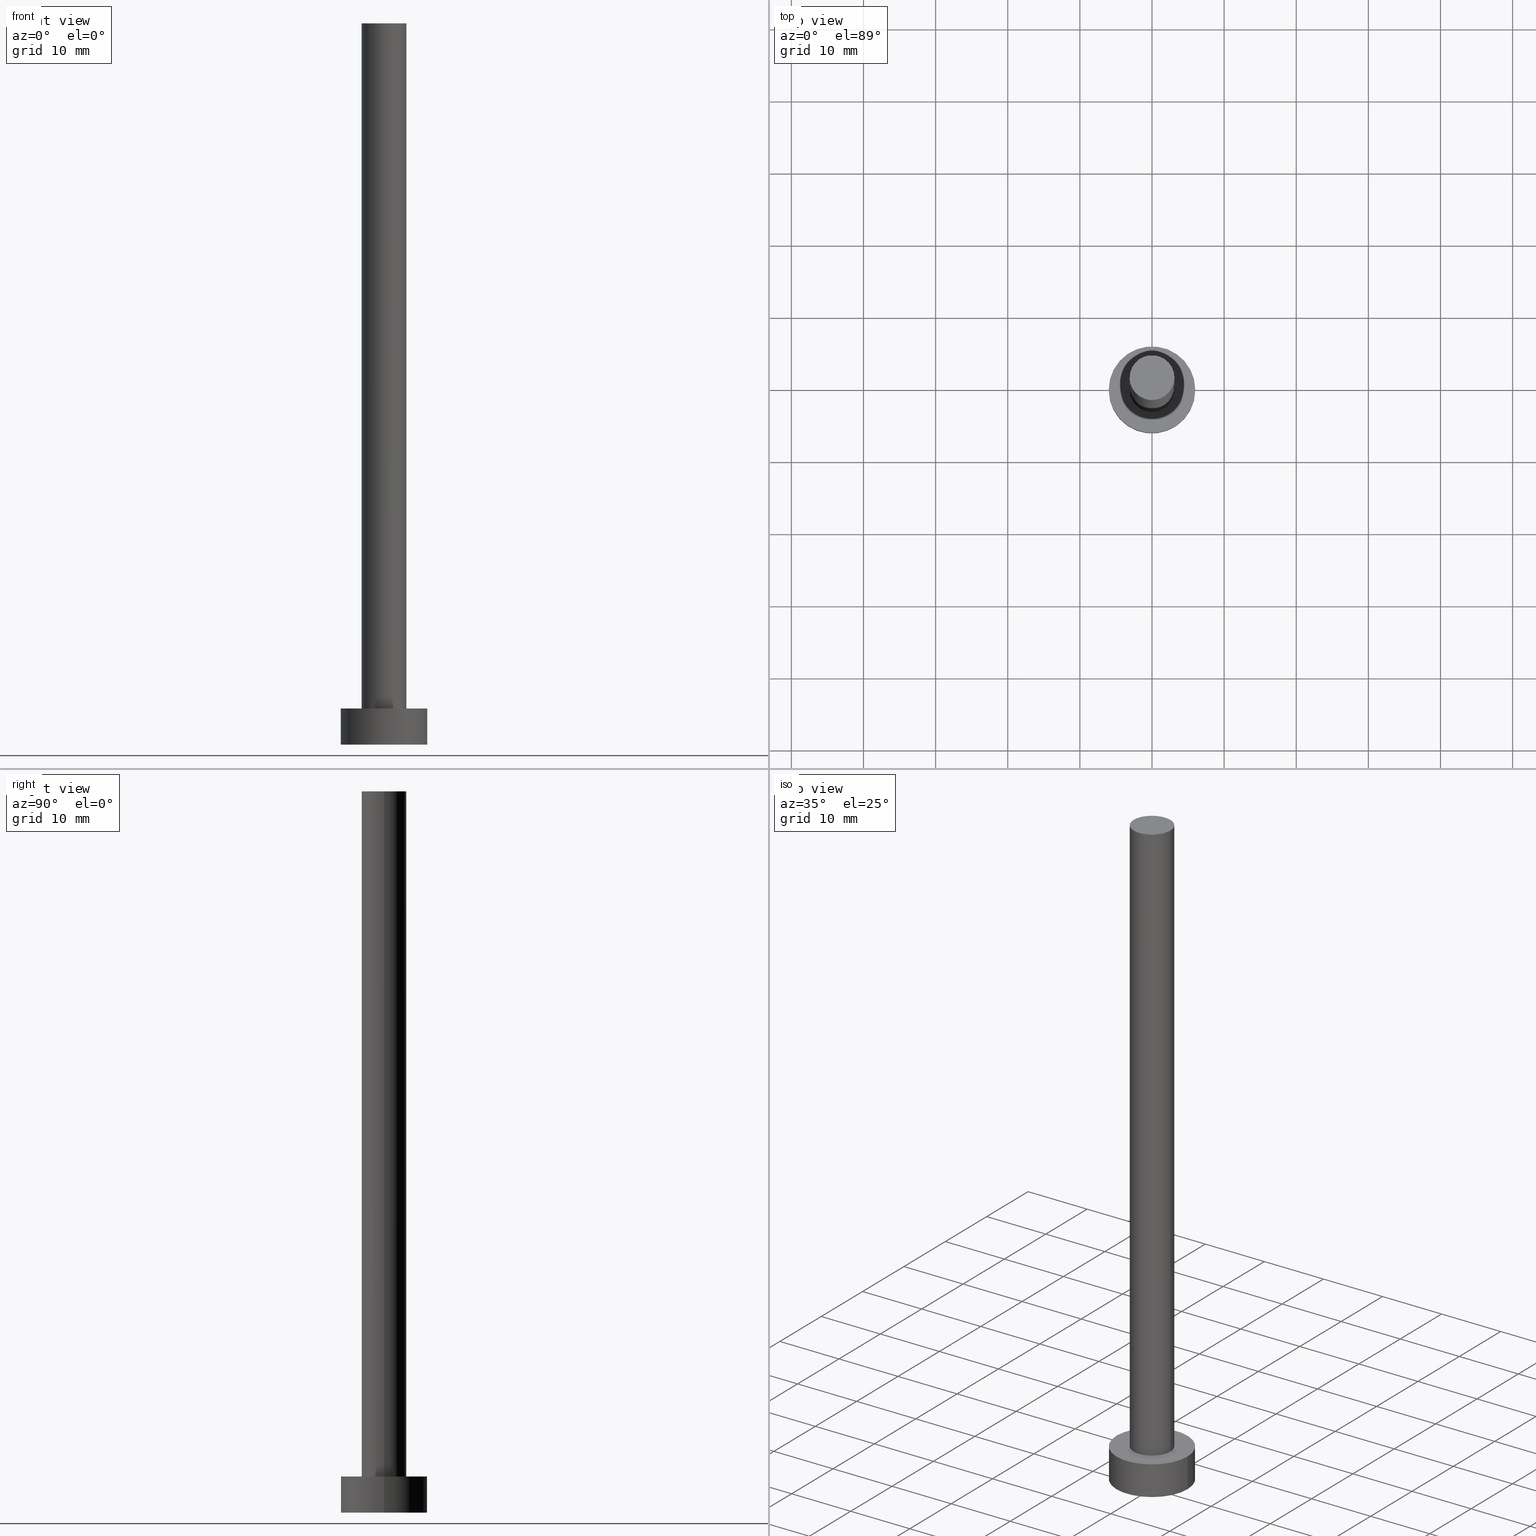
[diagram: canonical four-view strip — front | top / right | iso, engineering-drawing reading convention]
A machine part, canonical four-view strip (front | top / right | iso — engineering-drawing reading convention). The complete STEP part file that produces these views, byte-faithful:
ISO-10303-21;
HEADER;
FILE_DESCRIPTION (( 'STEP AP203' ),
    '1' );
FILE_NAME ('9bd0.STEP',
    '2023-02-13T12:36:40',
    ( '' ),
    ( '' ),
    'SwSTEP 2.0',
    'SolidWorks 2019',
    '' );
FILE_SCHEMA (( 'CONFIG_CONTROL_DESIGN' ));
ENDSEC;

DATA;
#1 = VERTEX_POINT ( 'NONE', #127 ) ;
#2 = COORDINATED_UNIVERSAL_TIME_OFFSET ( 1, 0, .AHEAD. ) ;
#3 = ORIENTED_EDGE ( 'NONE', *, *, #197, .T. ) ;
#4 = PERSON_AND_ORGANIZATION_ROLE ( 'design_owner' ) ;
#5 = ORIENTED_EDGE ( 'NONE', *, *, #101, .T. ) ;
#6 = APPROVAL_STATUS ( 'not_yet_approved' ) ;
#7 = ORIENTED_EDGE ( 'NONE', *, *, #133, .F. ) ;
#8 = CARTESIAN_POINT ( 'NONE',  ( 0.000000000000000000, 0.000000000000000000, 0.000000000000000000 ) ) ;
#9 = ORIENTED_EDGE ( 'NONE', *, *, #101, .F. ) ;
#10 = EDGE_CURVE ( 'NONE', #82, #40, #162, .T. ) ;
#11 = FACE_OUTER_BOUND ( 'NONE', #166, .T. ) ;
#12 = APPLICATION_CONTEXT ( 'configuration controlled 3d designs of mechanical parts and assemblies' ) ;
#13 = AXIS2_PLACEMENT_3D ( 'NONE', #192, #150, #78 ) ;
#14 =( LENGTH_UNIT ( ) NAMED_UNIT ( * ) SI_UNIT ( .MILLI., .METRE. ) );
#15 = EDGE_CURVE ( 'NONE', #246, #143, #41, .T. ) ;
#16 = ADVANCED_FACE ( 'NONE', ( #68 ), #219, .T. ) ;
#17 = DIRECTION ( 'NONE',  ( -0.000000000000000000, -0.000000000000000000, -1.000000000000000000 ) ) ;
#18 = EDGE_CURVE ( 'NONE', #40, #206, #37, .T. ) ;
#19 = FACE_OUTER_BOUND ( 'NONE', #243, .T. ) ;
#20 = AXIS2_PLACEMENT_3D ( 'NONE', #193, #95, #228 ) ;
#21 = CARTESIAN_POINT ( 'NONE',  ( -3.100000000000000089, 0.000000000000000000, 100.0000000000000000 ) ) ;
#22 = APPROVAL_ROLE ( '' ) ;
#23 = APPROVAL_STATUS ( 'not_yet_approved' ) ;
#24 = PRODUCT_DEFINITION_FORMATION_WITH_SPECIFIED_SOURCE ( 'LIBOVOLN�', '', #87, .NOT_KNOWN. ) ;
#25 = ORIENTED_EDGE ( 'NONE', *, *, #45, .T. ) ;
#26 = DATE_AND_TIME ( #50, #165 ) ;
#27 = ORIENTED_EDGE ( 'NONE', *, *, #232, .F. ) ;
#28 = DIRECTION ( 'NONE',  ( 1.000000000000000000, 0.000000000000000000, 0.000000000000000000 ) ) ;
#29 = CLOSED_SHELL ( 'NONE', ( #59, #16, #212, #173, #159, #117, #239 ) ) ;
#30 = ORIENTED_EDGE ( 'NONE', *, *, #10, .F. ) ;
#31 =( GEOMETRIC_REPRESENTATION_CONTEXT ( 3 ) GLOBAL_UNCERTAINTY_ASSIGNED_CONTEXT ( ( #175 ) ) GLOBAL_UNIT_ASSIGNED_CONTEXT ( ( #14, #113, #152 ) ) REPRESENTATION_CONTEXT ( 'NONE', 'WORKASPACE' ) );
#32 = DIRECTION ( 'NONE',  ( -1.000000000000000000, 0.000000000000000000, 0.000000000000000000 ) ) ;
#33 = CC_DESIGN_PERSON_AND_ORGANIZATION_ASSIGNMENT ( #160, #198, ( #24 ) ) ;
#34 = CARTESIAN_POINT ( 'NONE',  ( 3.100000000000000089, 3.796405077356794918E-16, 100.0000000000000000 ) ) ;
#35 = DIRECTION ( 'NONE',  ( 1.000000000000000000, 0.000000000000000000, -0.000000000000000000 ) ) ;
#36 = DIRECTION ( 'NONE',  ( 1.000000000000000000, 0.000000000000000000, 0.000000000000000000 ) ) ;
#37 = CIRCLE ( 'NONE', #184, 6.000000000000000888 ) ;
#38 = DIRECTION ( 'NONE',  ( 0.000000000000000000, 0.000000000000000000, 1.000000000000000000 ) ) ;
#39 = COORDINATED_UNIVERSAL_TIME_OFFSET ( 1, 0, .AHEAD. ) ;
#40 = VERTEX_POINT ( 'NONE', #73 ) ;
#41 = CIRCLE ( 'NONE', #185, 3.100000000000000089 ) ;
#42 = VECTOR ( 'NONE', #194, 1000.000000000000000 ) ;
#43 = EDGE_CURVE ( 'NONE', #1, #182, #77, .T. ) ;
#44 = APPROVAL_DATE_TIME ( #85, #223 ) ;
#45 = EDGE_CURVE ( 'NONE', #182, #143, #203, .T. ) ;
#46 = COORDINATED_UNIVERSAL_TIME_OFFSET ( 1, 0, .AHEAD. ) ;
#47 = AXIS2_PLACEMENT_3D ( 'NONE', #174, #38, #35 ) ;
#48 = CC_DESIGN_PERSON_AND_ORGANIZATION_ASSIGNMENT ( #125, #183, ( #58 ) ) ;
#49 = DIRECTION ( 'NONE',  ( -1.000000000000000000, 0.000000000000000000, 0.000000000000000000 ) ) ;
#50 = CALENDAR_DATE ( 2023, 13, 2 ) ;
#51 = PERSON ( 'NEUR�EN�', 'NEUR�EN�', 'NEUR�EN�', ('NEUR�EN�'), ('NEUR�EN�'), ('NEUR�EN�') ) ;
#52 = ORIENTED_EDGE ( 'NONE', *, *, #15, .T. ) ;
#53 = ORIENTED_EDGE ( 'NONE', *, *, #18, .F. ) ;
#54 = CARTESIAN_POINT ( 'NONE',  ( 0.000000000000000000, 0.000000000000000000, 100.0000000000000000 ) ) ;
#55 = PLANE ( 'NONE',  #47 ) ;
#56 = FACE_BOUND ( 'NONE', #200, .T. ) ;
#57 = DIRECTION ( 'NONE',  ( 0.000000000000000000, 0.000000000000000000, 1.000000000000000000 ) ) ;
#58 = SECURITY_CLASSIFICATION ( '', '', #241 ) ;
#59 = ADVANCED_FACE ( 'NONE', ( #11 ), #91, .T. ) ;
#60 = CARTESIAN_POINT ( 'NONE',  ( 0.000000000000000000, 0.000000000000000000, 0.000000000000000000 ) ) ;
#61 = CALENDAR_DATE ( 2023, 13, 2 ) ;
#62 = LOCAL_TIME ( 13, 36, 40.00000000000000000, #39 ) ;
#63 = PRODUCT_RELATED_PRODUCT_CATEGORY ( 'detail', '', ( #87 ) ) ;
#64 = AXIS2_PLACEMENT_3D ( 'NONE', #75, #98, #195 ) ;
#65 = APPROVAL_DATE_TIME ( #119, #149 ) ;
#66 = COORDINATED_UNIVERSAL_TIME_OFFSET ( 1, 0, .AHEAD. ) ;
#67 = DATE_TIME_ROLE ( 'classification_date' ) ;
#68 = FACE_OUTER_BOUND ( 'NONE', #105, .T. ) ;
#69 = APPROVAL_ROLE ( '' ) ;
#70 = LOCAL_TIME ( 13, 36, 40.00000000000000000, #2 ) ;
#71 = ORIENTED_EDGE ( 'NONE', *, *, #197, .F. ) ;
#72 = ORIENTED_EDGE ( 'NONE', *, *, #43, .F. ) ;
#73 = CARTESIAN_POINT ( 'NONE',  ( 6.000000000000000888, 7.347880794884120722E-16, 0.000000000000000000 ) ) ;
#74 = ORIENTED_EDGE ( 'NONE', *, *, #232, .T. ) ;
#75 = CARTESIAN_POINT ( 'NONE',  ( 0.000000000000000000, 0.000000000000000000, 5.000000000000000000 ) ) ;
#76 = DIRECTION ( 'NONE',  ( 1.000000000000000000, 0.000000000000000000, 0.000000000000000000 ) ) ;
#77 = CIRCLE ( 'NONE', #214, 3.100000000000000089 ) ;
#78 = DIRECTION ( 'NONE',  ( 1.000000000000000000, 0.000000000000000000, 0.000000000000000000 ) ) ;
#79 = AXIS2_PLACEMENT_3D ( 'NONE', #176, #134, #36 ) ;
#80 = CARTESIAN_POINT ( 'NONE',  ( -6.000000000000000888, 0.000000000000000000, 5.000000000000000000 ) ) ;
#81 = APPROVAL_PERSON_ORGANIZATION ( #180, #149, #215 ) ;
#82 = VERTEX_POINT ( 'NONE', #111 ) ;
#83 = PERSON_AND_ORGANIZATION ( #51, #100 ) ;
#84 = ORIENTED_EDGE ( 'NONE', *, *, #133, .T. ) ;
#85 = DATE_AND_TIME ( #238, #70 ) ;
#86 = DIRECTION ( 'NONE',  ( -0.000000000000000000, -0.000000000000000000, -1.000000000000000000 ) ) ;
#87 = PRODUCT ( '9bd0', '9bd0', '', ( #202 ) ) ;
#88 = DIRECTION ( 'NONE',  ( 1.000000000000000000, 0.000000000000000000, 0.000000000000000000 ) ) ;
#89 = EDGE_CURVE ( 'NONE', #206, #40, #138, .T. ) ;
#90 = ORIENTED_EDGE ( 'NONE', *, *, #179, .T. ) ;
#91 = CYLINDRICAL_SURFACE ( 'NONE', #250, 3.100000000000000089 ) ;
#92 = ORIENTED_EDGE ( 'NONE', *, *, #43, .T. ) ;
#93 = AXIS2_PLACEMENT_3D ( 'NONE', #116, #57, #76 ) ;
#94 = FACE_OUTER_BOUND ( 'NONE', #242, .T. ) ;
#95 = DIRECTION ( 'NONE',  ( -0.000000000000000000, -0.000000000000000000, -1.000000000000000000 ) ) ;
#96 = DIRECTION ( 'NONE',  ( 1.000000000000000000, 0.000000000000000000, -0.000000000000000000 ) ) ;
#97 = AXIS2_PLACEMENT_3D ( 'NONE', #154, #230, #253 ) ;
#98 = DIRECTION ( 'NONE',  ( 0.000000000000000000, 0.000000000000000000, 1.000000000000000000 ) ) ;
#99 = PERSON_AND_ORGANIZATION ( #51, #100 ) ;
#100 = ORGANIZATION ( 'NEUR�EN�', 'NEUR�EN�', '' ) ;
#101 = EDGE_CURVE ( 'NONE', #143, #246, #216, .T. ) ;
#102 = ORIENTED_EDGE ( 'NONE', *, *, #234, .T. ) ;
#103 = CALENDAR_DATE ( 2023, 13, 2 ) ;
#104 = DATE_AND_TIME ( #103, #171 ) ;
#105 = EDGE_LOOP ( 'NONE', ( #7, #191, #187, #71 ) ) ;
#106 = APPLICATION_PROTOCOL_DEFINITION ( 'international standard', 'config_control_design', 1994, #12 ) ;
#107 = ORIENTED_EDGE ( 'NONE', *, *, #45, .F. ) ;
#108 = DIRECTION ( 'NONE',  ( -0.000000000000000000, -0.000000000000000000, -1.000000000000000000 ) ) ;
#109 = AXIS2_PLACEMENT_3D ( 'NONE', #8, #189, #88 ) ;
#110 = DIRECTION ( 'NONE',  ( 1.000000000000000000, 0.000000000000000000, 0.000000000000000000 ) ) ;
#111 = CARTESIAN_POINT ( 'NONE',  ( 6.000000000000000888, 7.347880794884120722E-16, 5.000000000000000000 ) ) ;
#112 = CARTESIAN_POINT ( 'NONE',  ( 3.100000000000000089, 3.796405077356794918E-16, 5.000000000000000000 ) ) ;
#113 =( NAMED_UNIT ( * ) PLANE_ANGLE_UNIT ( ) SI_UNIT ( $, .RADIAN. ) );
#114 = PLANE ( 'NONE',  #247 ) ;
#115 = DIRECTION ( 'NONE',  ( -0.000000000000000000, -0.000000000000000000, -1.000000000000000000 ) ) ;
#116 = CARTESIAN_POINT ( 'NONE',  ( 0.000000000000000000, 0.000000000000000000, 5.000000000000000000 ) ) ;
#117 = ADVANCED_FACE ( 'NONE', ( #19 ), #249, .T. ) ;
#118 = CC_DESIGN_APPROVAL ( #223, ( #151 ) ) ;
#119 = DATE_AND_TIME ( #142, #62 ) ;
#120 = DESIGN_CONTEXT ( 'detailed design', #12, 'design' ) ;
#121 = APPROVAL ( #6, 'NEUR�EN�' ) ;
#122 = ORIENTED_EDGE ( 'NONE', *, *, #179, .F. ) ;
#123 = PERSON_AND_ORGANIZATION ( #51, #100 ) ;
#124 = ORIENTED_EDGE ( 'NONE', *, *, #89, .T. ) ;
#125 = PERSON_AND_ORGANIZATION ( #51, #100 ) ;
#126 = DIRECTION ( 'NONE',  ( 0.000000000000000000, 0.000000000000000000, 1.000000000000000000 ) ) ;
#127 = CARTESIAN_POINT ( 'NONE',  ( 3.100000000000000089, 3.796405077356794918E-16, 100.0000000000000000 ) ) ;
#128 = CIRCLE ( 'NONE', #97, 6.000000000000000888 ) ;
#129 = VECTOR ( 'NONE', #17, 1000.000000000000000 ) ;
#130 = DIRECTION ( 'NONE',  ( -0.000000000000000000, -0.000000000000000000, -1.000000000000000000 ) ) ;
#131 = LINE ( 'NONE', #80, #129 ) ;
#132 = DIRECTION ( 'NONE',  ( 0.000000000000000000, 0.000000000000000000, 1.000000000000000000 ) ) ;
#133 = EDGE_CURVE ( 'NONE', #82, #145, #128, .T. ) ;
#134 = DIRECTION ( 'NONE',  ( 0.000000000000000000, 0.000000000000000000, 1.000000000000000000 ) ) ;
#135 = CIRCLE ( 'NONE', #79, 3.100000000000000089 ) ;
#136 = DIRECTION ( 'NONE',  ( 1.000000000000000000, 0.000000000000000000, -0.000000000000000000 ) ) ;
#137 = PLANE ( 'NONE',  #140 ) ;
#138 = CIRCLE ( 'NONE', #13, 6.000000000000000888 ) ;
#139 = ADVANCED_BREP_SHAPE_REPRESENTATION ( '9bd0', ( #254, #109 ), #31 ) ;
#140 = AXIS2_PLACEMENT_3D ( 'NONE', #208, #132, #96 ) ;
#141 = LOCAL_TIME ( 13, 36, 40.00000000000000000, #233 ) ;
#142 = CALENDAR_DATE ( 2023, 13, 2 ) ;
#143 = VERTEX_POINT ( 'NONE', #209 ) ;
#144 = PERSON_AND_ORGANIZATION ( #51, #100 ) ;
#145 = VERTEX_POINT ( 'NONE', #211 ) ;
#146 = DIRECTION ( 'NONE',  ( -0.000000000000000000, -0.000000000000000000, -1.000000000000000000 ) ) ;
#147 = DIRECTION ( 'NONE',  ( 0.000000000000000000, 0.000000000000000000, 1.000000000000000000 ) ) ;
#148 = ORIENTED_EDGE ( 'NONE', *, *, #15, .F. ) ;
#149 = APPROVAL ( #236, 'NEUR�EN�' ) ;
#150 = DIRECTION ( 'NONE',  ( 0.000000000000000000, 0.000000000000000000, 1.000000000000000000 ) ) ;
#151 = PRODUCT_DEFINITION ( 'NEZN�M�', '', #24, #120 ) ;
#152 =( NAMED_UNIT ( * ) SI_UNIT ( $, .STERADIAN. ) SOLID_ANGLE_UNIT ( ) );
#153 = VECTOR ( 'NONE', #146, 1000.000000000000000 ) ;
#154 = CARTESIAN_POINT ( 'NONE',  ( 0.000000000000000000, 0.000000000000000000, 5.000000000000000000 ) ) ;
#155 = AXIS2_PLACEMENT_3D ( 'NONE', #231, #115, #213 ) ;
#156 = CYLINDRICAL_SURFACE ( 'NONE', #155, 6.000000000000000888 ) ;
#157 = FACE_OUTER_BOUND ( 'NONE', #227, .T. ) ;
#158 = EDGE_LOOP ( 'NONE', ( #164, #53 ) ) ;
#159 = ADVANCED_FACE ( 'NONE', ( #172 ), #114, .F. ) ;
#160 = PERSON_AND_ORGANIZATION ( #51, #100 ) ;
#161 = DATE_AND_TIME ( #61, #141 ) ;
#162 = LINE ( 'NONE', #240, #153 ) ;
#163 = APPROVAL_DATE_TIME ( #104, #121 ) ;
#164 = ORIENTED_EDGE ( 'NONE', *, *, #89, .F. ) ;
#165 = LOCAL_TIME ( 13, 36, 40.00000000000000000, #46 ) ;
#166 = EDGE_LOOP ( 'NONE', ( #72, #102, #52, #107 ) ) ;
#167 = EDGE_LOOP ( 'NONE', ( #90, #84 ) ) ;
#168 = DIRECTION ( 'NONE',  ( 1.000000000000000000, 0.000000000000000000, 0.000000000000000000 ) ) ;
#169 = CC_DESIGN_DATE_AND_TIME_ASSIGNMENT ( #26, #199, ( #151 ) ) ;
#170 = CC_DESIGN_SECURITY_CLASSIFICATION ( #58, ( #24 ) ) ;
#171 = LOCAL_TIME ( 13, 36, 40.00000000000000000, #66 ) ;
#172 = FACE_OUTER_BOUND ( 'NONE', #158, .T. ) ;
#173 = ADVANCED_FACE ( 'NONE', ( #56, #178 ), #137, .T. ) ;
#174 = CARTESIAN_POINT ( 'NONE',  ( 0.000000000000000000, 0.000000000000000000, 100.0000000000000000 ) ) ;
#175 = UNCERTAINTY_MEASURE_WITH_UNIT (LENGTH_MEASURE( 1.000000000000000082E-05 ), #14, 'distance_accuracy_value', 'NONE');
#176 = CARTESIAN_POINT ( 'NONE',  ( 0.000000000000000000, 0.000000000000000000, 100.0000000000000000 ) ) ;
#177 = CC_DESIGN_APPROVAL ( #149, ( #58 ) ) ;
#178 = FACE_OUTER_BOUND ( 'NONE', #167, .T. ) ;
#179 = EDGE_CURVE ( 'NONE', #145, #82, #190, .T. ) ;
#180 = PERSON_AND_ORGANIZATION ( #51, #100 ) ;
#181 = CC_DESIGN_PERSON_AND_ORGANIZATION_ASSIGNMENT ( #144, #196, ( #151 ) ) ;
#182 = VERTEX_POINT ( 'NONE', #21 ) ;
#183 = PERSON_AND_ORGANIZATION_ROLE ( 'classification_officer' ) ;
#184 = AXIS2_PLACEMENT_3D ( 'NONE', #205, #126, #110 ) ;
#185 = AXIS2_PLACEMENT_3D ( 'NONE', #221, #226, #168 ) ;
#186 = APPLICATION_PROTOCOL_DEFINITION ( 'international standard', 'config_control_design', 1994, #255 ) ;
#187 = ORIENTED_EDGE ( 'NONE', *, *, #18, .T. ) ;
#188 = CARTESIAN_POINT ( 'NONE',  ( -3.100000000000000089, 0.000000000000000000, 100.0000000000000000 ) ) ;
#189 = DIRECTION ( 'NONE',  ( 0.000000000000000000, 0.000000000000000000, 1.000000000000000000 ) ) ;
#190 = CIRCLE ( 'NONE', #93, 6.000000000000000888 ) ;
#191 = ORIENTED_EDGE ( 'NONE', *, *, #10, .T. ) ;
#192 = CARTESIAN_POINT ( 'NONE',  ( 0.000000000000000000, 0.000000000000000000, 0.000000000000000000 ) ) ;
#193 = CARTESIAN_POINT ( 'NONE',  ( 0.000000000000000000, 0.000000000000000000, 100.0000000000000000 ) ) ;
#194 = DIRECTION ( 'NONE',  ( -0.000000000000000000, -0.000000000000000000, -1.000000000000000000 ) ) ;
#195 = DIRECTION ( 'NONE',  ( 1.000000000000000000, 0.000000000000000000, 0.000000000000000000 ) ) ;
#196 = PERSON_AND_ORGANIZATION_ROLE ( 'creator' ) ;
#197 = EDGE_CURVE ( 'NONE', #145, #206, #131, .T. ) ;
#198 = PERSON_AND_ORGANIZATION_ROLE ( 'creator' ) ;
#199 = DATE_TIME_ROLE ( 'creation_date' ) ;
#200 = EDGE_LOOP ( 'NONE', ( #9, #148 ) ) ;
#201 = APPROVAL_PERSON_ORGANIZATION ( #123, #121, #22 ) ;
#202 = MECHANICAL_CONTEXT ( 'NONE', #255, 'mechanical' ) ;
#203 = LINE ( 'NONE', #188, #245 ) ;
#204 = CARTESIAN_POINT ( 'NONE',  ( 0.000000000000000000, 0.000000000000000000, 100.0000000000000000 ) ) ;
#205 = CARTESIAN_POINT ( 'NONE',  ( 0.000000000000000000, 0.000000000000000000, 0.000000000000000000 ) ) ;
#206 = VERTEX_POINT ( 'NONE', #252 ) ;
#207 = CC_DESIGN_PERSON_AND_ORGANIZATION_ASSIGNMENT ( #220, #4, ( #87 ) ) ;
#208 = CARTESIAN_POINT ( 'NONE',  ( 0.000000000000000000, 0.000000000000000000, 5.000000000000000000 ) ) ;
#209 = CARTESIAN_POINT ( 'NONE',  ( -3.100000000000000089, 0.000000000000000000, 5.000000000000000000 ) ) ;
#210 = LINE ( 'NONE', #34, #42 ) ;
#211 = CARTESIAN_POINT ( 'NONE',  ( -6.000000000000000888, 0.000000000000000000, 5.000000000000000000 ) ) ;
#212 = ADVANCED_FACE ( 'NONE', ( #94 ), #156, .T. ) ;
#213 = DIRECTION ( 'NONE',  ( -1.000000000000000000, 0.000000000000000000, 0.000000000000000000 ) ) ;
#214 = AXIS2_PLACEMENT_3D ( 'NONE', #204, #147, #28 ) ;
#215 = APPROVAL_ROLE ( '' ) ;
#216 = CIRCLE ( 'NONE', #64, 3.100000000000000089 ) ;
#217 = APPROVAL_PERSON_ORGANIZATION ( #99, #223, #69 ) ;
#218 = SHAPE_DEFINITION_REPRESENTATION ( #222, #139 ) ;
#219 = CYLINDRICAL_SURFACE ( 'NONE', #225, 6.000000000000000888 ) ;
#220 = PERSON_AND_ORGANIZATION ( #51, #100 ) ;
#221 = CARTESIAN_POINT ( 'NONE',  ( 0.000000000000000000, 0.000000000000000000, 5.000000000000000000 ) ) ;
#222 = PRODUCT_DEFINITION_SHAPE ( 'NONE', 'NONE',  #151 ) ;
#223 = APPROVAL ( #23, 'NEUR�EN�' ) ;
#224 = CARTESIAN_POINT ( 'NONE',  ( 0.000000000000000000, 0.000000000000000000, 5.000000000000000000 ) ) ;
#225 = AXIS2_PLACEMENT_3D ( 'NONE', #224, #86, #49 ) ;
#226 = DIRECTION ( 'NONE',  ( 0.000000000000000000, 0.000000000000000000, 1.000000000000000000 ) ) ;
#227 = EDGE_LOOP ( 'NONE', ( #74, #92 ) ) ;
#228 = DIRECTION ( 'NONE',  ( -1.000000000000000000, 0.000000000000000000, 0.000000000000000000 ) ) ;
#229 = DIRECTION ( 'NONE',  ( 0.000000000000000000, 0.000000000000000000, 1.000000000000000000 ) ) ;
#230 = DIRECTION ( 'NONE',  ( 0.000000000000000000, 0.000000000000000000, 1.000000000000000000 ) ) ;
#231 = CARTESIAN_POINT ( 'NONE',  ( 0.000000000000000000, 0.000000000000000000, 5.000000000000000000 ) ) ;
#232 = EDGE_CURVE ( 'NONE', #182, #1, #135, .T. ) ;
#233 = COORDINATED_UNIVERSAL_TIME_OFFSET ( 1, 0, .AHEAD. ) ;
#234 = EDGE_CURVE ( 'NONE', #1, #246, #210, .T. ) ;
#235 = PERSON_AND_ORGANIZATION_ROLE ( 'design_supplier' ) ;
#236 = APPROVAL_STATUS ( 'not_yet_approved' ) ;
#237 = CC_DESIGN_DATE_AND_TIME_ASSIGNMENT ( #161, #67, ( #58 ) ) ;
#238 = CALENDAR_DATE ( 2023, 13, 2 ) ;
#239 = ADVANCED_FACE ( 'NONE', ( #157 ), #55, .T. ) ;
#240 = CARTESIAN_POINT ( 'NONE',  ( 6.000000000000000888, 7.347880794884120722E-16, 5.000000000000000000 ) ) ;
#241 = SECURITY_CLASSIFICATION_LEVEL ( 'unclassified' ) ;
#242 = EDGE_LOOP ( 'NONE', ( #30, #122, #3, #124 ) ) ;
#243 = EDGE_LOOP ( 'NONE', ( #244, #27, #25, #5 ) ) ;
#244 = ORIENTED_EDGE ( 'NONE', *, *, #234, .F. ) ;
#245 = VECTOR ( 'NONE', #108, 1000.000000000000000 ) ;
#246 = VERTEX_POINT ( 'NONE', #112 ) ;
#247 = AXIS2_PLACEMENT_3D ( 'NONE', #60, #229, #136 ) ;
#248 = CC_DESIGN_PERSON_AND_ORGANIZATION_ASSIGNMENT ( #83, #235, ( #24 ) ) ;
#249 = CYLINDRICAL_SURFACE ( 'NONE', #20, 3.100000000000000089 ) ;
#250 = AXIS2_PLACEMENT_3D ( 'NONE', #54, #130, #32 ) ;
#251 = CC_DESIGN_APPROVAL ( #121, ( #24 ) ) ;
#252 = CARTESIAN_POINT ( 'NONE',  ( -6.000000000000000888, 0.000000000000000000, 0.000000000000000000 ) ) ;
#253 = DIRECTION ( 'NONE',  ( 1.000000000000000000, 0.000000000000000000, 0.000000000000000000 ) ) ;
#254 = MANIFOLD_SOLID_BREP ( 'P�idat vysunut�m3', #29 ) ;
#255 = APPLICATION_CONTEXT ( 'configuration controlled 3d designs of mechanical parts and assemblies' ) ;
ENDSEC;
END-ISO-10303-21;
